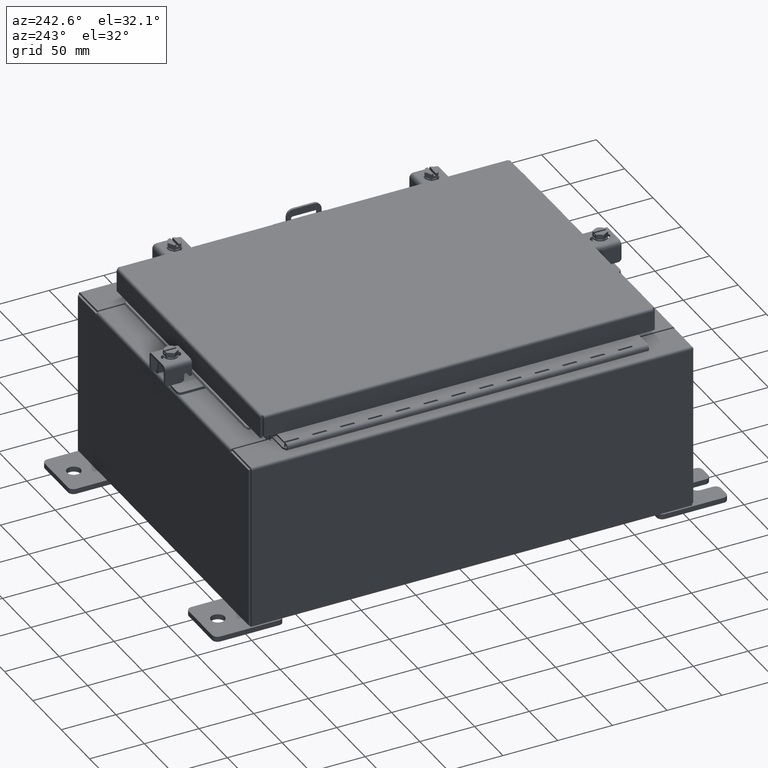
[diagram: clean part render]
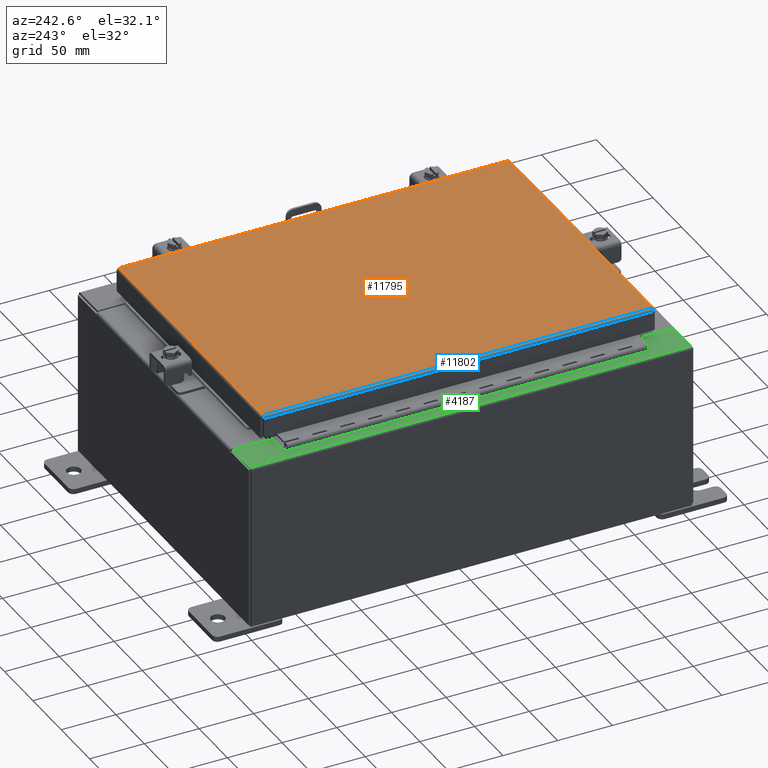
[diagram: same view with three faces highlighted in distinct colors, each labeled with its STEP entity id]
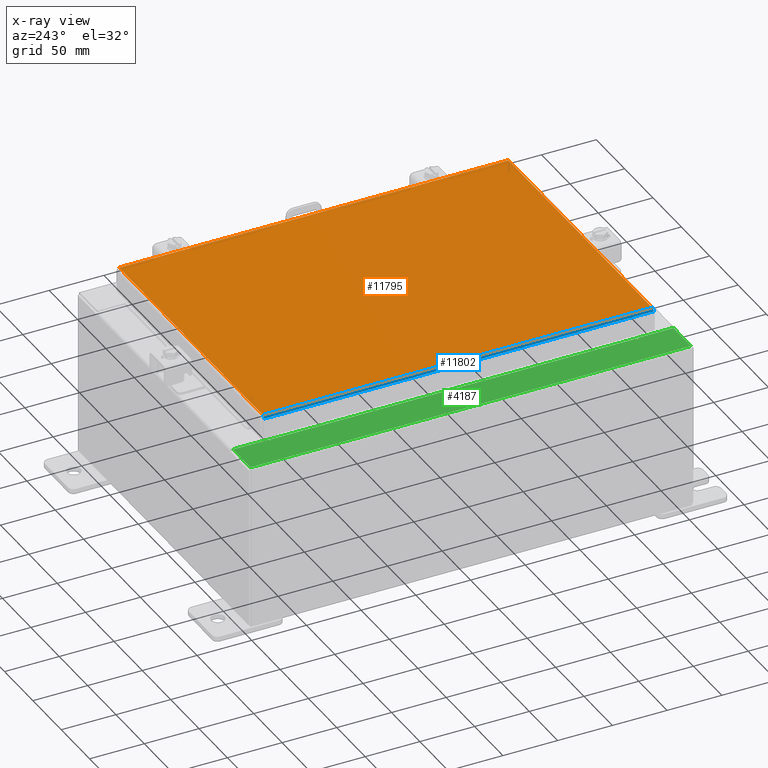
[diagram: x-ray of the same camera — body ghosted, the three highlighted faces saturated]
A machine part, auxiliary view with three faces highlighted in distinct colors.
The next image is the same camera in x-ray (body ghosted, the three faces saturated) — at least one of them is partly hidden behind the body in this view.
Their STEP definitions:

[orange] entity #11795 — the highlighted planar face has unit normal (0, 0, -1).
#437 = ORIENTED_EDGE ( 'NONE', *, *, #8925, .T. ) ;
#1994 = DIRECTION ( 'NONE',  ( 0.0000000000000000000, -1.000000000000000000, 0.0000000000000000000 ) ) ;
#4113 = CARTESIAN_POINT ( 'NONE',  ( 0.0000000000000000000, 0.0000000000000000000, 0.0000000000000000000 ) ) ;
#4370 = EDGE_CURVE ( 'NONE', #23203, #8193, #15462, .T. ) ;
#4674 = LINE ( 'NONE', #15477, #25450 ) ;
#5616 = AXIS2_PLACEMENT_3D ( 'NONE', #4113, #18199, #6128 ) ;
#6128 = DIRECTION ( 'NONE',  ( -1.000000000000000000, 0.0000000000000000000, -0.0000000000000000000 ) ) ;
#7520 = LINE ( 'NONE', #8040, #12886 ) ;
#7756 = VERTEX_POINT ( 'NONE', #13197 ) ;
#8040 = CARTESIAN_POINT ( 'NONE',  ( -4.990300000000000400, 7.006300000000000400, -2.048885995248197400E-016 ) ) ;
#8193 = VERTEX_POINT ( 'NONE', #16489 ) ;
#8215 = CARTESIAN_POINT ( 'NONE',  ( 4.990299999999998600, -7.006300000000000400, 3.414809992080329000E-016 ) ) ;
#8925 = EDGE_CURVE ( 'NONE', #7756, #24246, #4674, .T. ) ;
#9381 = EDGE_LOOP ( 'NONE', ( #437, #14432, #21642, #16861 ) ) ;
#11795 = ADVANCED_FACE ( 'NONE', ( #23741 ), #14143, .F. ) ;
#12689 = EDGE_CURVE ( 'NONE', #24246, #23203, #21191, .T. ) ;
#12793 = CARTESIAN_POINT ( 'NONE',  ( 4.990299999999998600, 7.006300000000000400, -2.048885995248197400E-016 ) ) ;
#12886 = VECTOR ( 'NONE', #1994, 39.37007874015748100 ) ;
#13197 = CARTESIAN_POINT ( 'NONE',  ( -4.990300000000000400, -7.006300000000000400, -2.048885995248197400E-016 ) ) ;
#14143 = PLANE ( 'NONE',  #5616 ) ;
#14432 = ORIENTED_EDGE ( 'NONE', *, *, #12689, .T. ) ;
#14978 = DIRECTION ( 'NONE',  ( 0.0000000000000000000, 1.000000000000000000, 0.0000000000000000000 ) ) ;
#15462 = LINE ( 'NONE', #12793, #25540 ) ;
#15477 = CARTESIAN_POINT ( 'NONE',  ( -4.990300000000000400, -7.006300000000000400, -2.048885995248197400E-016 ) ) ;
#15882 = EDGE_CURVE ( 'NONE', #8193, #7756, #7520, .T. ) ;
#16489 = CARTESIAN_POINT ( 'NONE',  ( -4.990300000000000400, 7.006300000000000400, -2.048885995248197400E-016 ) ) ;
#16861 = ORIENTED_EDGE ( 'NONE', *, *, #15882, .T. ) ;
#18199 = DIRECTION ( 'NONE',  ( 0.0000000000000000000, 0.0000000000000000000, -1.000000000000000000 ) ) ;
#18751 = CARTESIAN_POINT ( 'NONE',  ( 4.990299999999998600, 7.006300000000000400, -2.048885995248197400E-016 ) ) ;
#18872 = DIRECTION ( 'NONE',  ( -1.000000000000000000, -0.0000000000000000000, -0.0000000000000000000 ) ) ;
#21191 = LINE ( 'NONE', #25020, #25882 ) ;
#21570 = DIRECTION ( 'NONE',  ( 1.000000000000000000, -0.0000000000000000000, -0.0000000000000000000 ) ) ;
#21642 = ORIENTED_EDGE ( 'NONE', *, *, #4370, .T. ) ;
#23203 = VERTEX_POINT ( 'NONE', #18751 ) ;
#23741 = FACE_OUTER_BOUND ( 'NONE', #9381, .T. ) ;
#24246 = VERTEX_POINT ( 'NONE', #8215 ) ;
#25020 = CARTESIAN_POINT ( 'NONE',  ( 4.990299999999998600, -7.006300000000000400, 3.414809992080329000E-016 ) ) ;
#25450 = VECTOR ( 'NONE', #21570, 39.37007874015748100 ) ;
#25540 = VECTOR ( 'NONE', #18872, 39.37007874015748100 ) ;
#25882 = VECTOR ( 'NONE', #14978, 39.37007874015748100 ) ;

[blue] entity #11802 — the highlighted cylindrical surface (edge-blend (fillet) strip) has radius 2.2276 mm, axis along (0, 1, 0).
#431 = CARTESIAN_POINT ( 'NONE',  ( -5.060430782078324100, -7.005633754219490000, -0.03380425265820009900 ) ) ;
#1004 = EDGE_CURVE ( 'NONE', #5773, #23257, #12114, .T. ) ;
#1716 = CYLINDRICAL_SURFACE ( 'NONE', #8326, 0.08770000000000026400 ) ;
#1781 = CARTESIAN_POINT ( 'NONE',  ( -5.034467384578530200, 7.005919288125422600, -0.01106893374133176100 ) ) ;
#1994 = DIRECTION ( 'NONE',  ( 0.0000000000000000000, -1.000000000000000000, 0.0000000000000000000 ) ) ;
#2470 = CARTESIAN_POINT ( 'NONE',  ( -5.075717403743813500, -7.005348220313559100, -0.06474471054169118900 ) ) ;
#3793 = CARTESIAN_POINT ( 'NONE',  ( -5.001779903154994300, 7.006204822031357100, -2.037547758946368100E-016 ) ) ;
#3994 = EDGE_LOOP ( 'NONE', ( #18633, #18398, #21571, #8501 ) ) ;
#4302 = CARTESIAN_POINT ( 'NONE',  ( -5.078000000000001200, 7.005157864376269700, -0.08770000000000004200 ) ) ;
#4472 = CARTESIAN_POINT ( 'NONE',  ( -5.078000000000001200, -7.005157864376269700, -0.08770000000000007000 ) ) ;
#5773 = VERTEX_POINT ( 'NONE', #4302 ) ;
#5820 = DIRECTION ( 'NONE',  ( 3.797360338743712300E-031, -1.000000000000000000, -1.119390514946887900E-045 ) ) ;
#6397 = CARTESIAN_POINT ( 'NONE',  ( -4.990300000000000400, -7.006300000000000400, -2.048885995248197400E-016 ) ) ;
#6783 = VECTOR ( 'NONE', #5820, 39.37007874015748100 ) ;
#7379 = B_SPLINE_CURVE_WITH_KNOTS ( 'NONE', 3,
 ( #6397, #22514, #10457, #24529, #12481, #431, #14500, #2470, #16510, #4472 ),
 .UNSPECIFIED., .F., .F.,
 ( 4, 2, 2, 2, 4 ),
 ( 0.0000000000000000000, 0.2500000000000000000, 0.5000000000000000000, 0.7500000000000000000, 1.000000000000000000 ),
 .UNSPECIFIED. ) ;
#7520 = LINE ( 'NONE', #8040, #12886 ) ;
#7756 = VERTEX_POINT ( 'NONE', #13197 ) ;
#8040 = CARTESIAN_POINT ( 'NONE',  ( -4.990300000000000400, 7.006300000000000400, -2.048885995248197400E-016 ) ) ;
#8162 = CARTESIAN_POINT ( 'NONE',  ( -4.990300000000000400, 7.006300000000000400, -0.08770000000000030500 ) ) ;
#8193 = VERTEX_POINT ( 'NONE', #16489 ) ;
#8326 = AXIS2_PLACEMENT_3D ( 'NONE', #8162, #22260, #20229 ) ;
#8501 = ORIENTED_EDGE ( 'NONE', *, *, #13705, .F. ) ;
#10457 = CARTESIAN_POINT ( 'NONE',  ( -5.013255289458309800, -7.006109644062711100, -0.002282596256188924700 ) ) ;
#10928 = B_SPLINE_CURVE_WITH_KNOTS ( 'NONE', 3,
 ( #21836, #19798, #23856, #11784, #25866, #13813, #1781, #15832, #3793, #17859 ),
 .UNSPECIFIED., .F., .F.,
 ( 4, 2, 2, 2, 4 ),
 ( 0.0000000000000000000, 0.2500000000000000000, 0.5000000000000000000, 0.7500000000000000000, 1.000000000000000000 ),
 .UNSPECIFIED. ) ;
#11784 = CARTESIAN_POINT ( 'NONE',  ( -5.066931066258668200, 7.005538576250844900, -0.04353261542147222200 ) ) ;
#11802 = ADVANCED_FACE ( 'NONE', ( #17737 ), #1716, .T. ) ;
#11806 = CARTESIAN_POINT ( 'NONE',  ( -5.078000000000001200, -7.094000000000000300, -0.08770000000000004200 ) ) ;
#12114 = LINE ( 'NONE', #11806, #6783 ) ;
#12481 = CARTESIAN_POINT ( 'NONE',  ( -5.044195747341800200, -7.005824110156779300, -0.01756921792167976500 ) ) ;
#12886 = VECTOR ( 'NONE', #1994, 39.37007874015748100 ) ;
#13197 = CARTESIAN_POINT ( 'NONE',  ( -4.990300000000000400, -7.006300000000000400, -2.048885995248197400E-016 ) ) ;
#13705 = EDGE_CURVE ( 'NONE', #7756, #23257, #7379, .T. ) ;
#13813 = CARTESIAN_POINT ( 'NONE',  ( -5.044195747341799300, 7.005824110156780200, -0.01756921792167976500 ) ) ;
#14500 = CARTESIAN_POINT ( 'NONE',  ( -5.066931066258668200, -7.005538576250847500, -0.04353261542147222900 ) ) ;
#15832 = CARTESIAN_POINT ( 'NONE',  ( -5.013255289458311600, 7.006109644062711100, -0.002282596256188923800 ) ) ;
#15882 = EDGE_CURVE ( 'NONE', #8193, #7756, #7520, .T. ) ;
#16489 = CARTESIAN_POINT ( 'NONE',  ( -4.990300000000000400, 7.006300000000000400, -2.048885995248197400E-016 ) ) ;
#16510 = CARTESIAN_POINT ( 'NONE',  ( -5.078000000000001200, -7.005253042344914900, -0.07622009684500735700 ) ) ;
#17737 = FACE_OUTER_BOUND ( 'NONE', #3994, .T. ) ;
#17859 = CARTESIAN_POINT ( 'NONE',  ( -4.990300000000000400, 7.006300000000000400, -2.048885995248197400E-016 ) ) ;
#18398 = ORIENTED_EDGE ( 'NONE', *, *, #22011, .F. ) ;
#18633 = ORIENTED_EDGE ( 'NONE', *, *, #15882, .F. ) ;
#19798 = CARTESIAN_POINT ( 'NONE',  ( -5.078000000000001200, 7.005253042344914900, -0.07622009684500732900 ) ) ;
#20229 = DIRECTION ( 'NONE',  ( -1.000000000000000000, 0.0000000000000000000, 3.114992011019675100E-015 ) ) ;
#21048 = CARTESIAN_POINT ( 'NONE',  ( -5.078000000000001200, -7.005157864376269700, -0.08770000000000007000 ) ) ;
#21571 = ORIENTED_EDGE ( 'NONE', *, *, #1004, .T. ) ;
#21836 = CARTESIAN_POINT ( 'NONE',  ( -5.078000000000001200, 7.005157864376269700, -0.08770000000000004200 ) ) ;
#22011 = EDGE_CURVE ( 'NONE', #5773, #8193, #10928, .T. ) ;
#22260 = DIRECTION ( 'NONE',  ( -0.0000000000000000000, 1.000000000000000000, -0.0000000000000000000 ) ) ;
#22514 = CARTESIAN_POINT ( 'NONE',  ( -5.001779903154992500, -7.006204822031357100, -2.043883832173860400E-016 ) ) ;
#23257 = VERTEX_POINT ( 'NONE', #21048 ) ;
#23856 = CARTESIAN_POINT ( 'NONE',  ( -5.075717403743813500, 7.005348220313559100, -0.06474471054169118900 ) ) ;
#24529 = CARTESIAN_POINT ( 'NONE',  ( -5.034467384578528400, -7.005919288125420900, -0.01106893374133176100 ) ) ;
#25866 = CARTESIAN_POINT ( 'NONE',  ( -5.060430782078321400, 7.005633754219491700, -0.03380425265820009200 ) ) ;

[green] entity #4187 — the highlighted planar face has unit normal (0, 0, -1).
#133 = EDGE_CURVE ( 'NONE', #23858, #21659, #22267, .T. ) ;
#282 = CIRCLE ( 'NONE', #7056, 0.01867500000000003900 ) ;
#580 = CARTESIAN_POINT ( 'NONE',  ( -5.912300000000023200, 7.925299999999998200, 5.925299999999999100 ) ) ;
#1392 = DIRECTION ( 'NONE',  ( 1.000000000000000000, 0.0000000000000000000, 0.0000000000000000000 ) ) ;
#1544 = CARTESIAN_POINT ( 'NONE',  ( -4.699700000000022200, -2.266503483687116700E-030, 5.925300000000008000 ) ) ;
#1802 = AXIS2_PLACEMENT_3D ( 'NONE', #6175, #8303, #22386 ) ;
#2990 = LINE ( 'NONE', #16076, #18390 ) ;
#3809 = VECTOR ( 'NONE', #19627, 39.37007874015748100 ) ;
#4187 = ADVANCED_FACE ( 'NONE', ( #8837 ), #12252, .F. ) ;
#4317 = VERTEX_POINT ( 'NONE', #6612 ) ;
#4398 = VERTEX_POINT ( 'NONE', #4860 ) ;
#4544 = ORIENTED_EDGE ( 'NONE', *, *, #23726, .T. ) ;
#4610 = VERTEX_POINT ( 'NONE', #17588 ) ;
#4640 = EDGE_CURVE ( 'NONE', #4610, #6543, #19856, .T. ) ;
#4716 = ORIENTED_EDGE ( 'NONE', *, *, #23855, .F. ) ;
#4860 = CARTESIAN_POINT ( 'NONE',  ( -4.712700000000023000, -6.593749999999999100, 5.925300000000008000 ) ) ;
#6175 = CARTESIAN_POINT ( 'NONE',  ( -4.252457061908983700E-014, 0.0000000000000000000, 5.925300000000041800 ) ) ;
#6526 = EDGE_CURVE ( 'NONE', #4317, #13063, #17967, .T. ) ;
#6543 = VERTEX_POINT ( 'NONE', #580 ) ;
#6612 = CARTESIAN_POINT ( 'NONE',  ( -5.912300000000023200, -7.925300000000000000, 5.925299999999999100 ) ) ;
#7056 = AXIS2_PLACEMENT_3D ( 'NONE', #8669, #22751, #10688 ) ;
#7180 = ORIENTED_EDGE ( 'NONE', *, *, #11759, .F. ) ;
#7580 = CARTESIAN_POINT ( 'NONE',  ( -4.252457061908983700E-014, 7.925299999999998200, 5.925300000000041800 ) ) ;
#7656 = VECTOR ( 'NONE', #11735, 39.37007874015748100 ) ;
#8303 = DIRECTION ( 'NONE',  ( 7.132762385546378400E-015, 0.0000000000000000000, -1.000000000000000000 ) ) ;
#8307 = VECTOR ( 'NONE', #14123, 39.37007874015748100 ) ;
#8475 = VERTEX_POINT ( 'NONE', #21429 ) ;
#8669 = CARTESIAN_POINT ( 'NONE',  ( -4.750050000000023000, 6.612424999999998200, 5.925300000000008000 ) ) ;
#8837 = FACE_OUTER_BOUND ( 'NONE', #9706, .T. ) ;
#8945 = LINE ( 'NONE', #24151, #8307 ) ;
#8983 = CARTESIAN_POINT ( 'NONE',  ( -4.699700000000022200, 6.631100000000000000, 5.925300000000008000 ) ) ;
#9031 = VECTOR ( 'NONE', #22884, 39.37007874015748100 ) ;
#9706 = EDGE_LOOP ( 'NONE', ( #22235, #4544, #15894, #18713, #12018, #15342, #22604, #25847, #13991, #7180, #4716, #10888 ) ) ;
#10440 = CARTESIAN_POINT ( 'NONE',  ( -4.750050000000023000, -6.593749999999999100, 5.925300000000008000 ) ) ;
#10516 = CARTESIAN_POINT ( 'NONE',  ( -4.252457061908983700E-014, -7.925300000000000000, 5.925300000000041800 ) ) ;
#10688 = DIRECTION ( 'NONE',  ( 1.000000000000000000, 0.0000000000000000000, 0.0000000000000000000 ) ) ;
#10888 = ORIENTED_EDGE ( 'NONE', *, *, #15993, .F. ) ;
#11056 = CARTESIAN_POINT ( 'NONE',  ( -4.750050000000023000, -6.631099999999999100, 5.925300000000008000 ) ) ;
#11070 = AXIS2_PLACEMENT_3D ( 'NONE', #25477, #13431, #1392 ) ;
#11735 = DIRECTION ( 'NONE',  ( 6.893992640440775600E-017, 1.000000000000000000, 4.917321139196952400E-031 ) ) ;
#11759 = EDGE_CURVE ( 'NONE', #15616, #4398, #2990, .T. ) ;
#12018 = ORIENTED_EDGE ( 'NONE', *, *, #6526, .T. ) ;
#12252 = PLANE ( 'NONE',  #1802 ) ;
#12320 = EDGE_CURVE ( 'NONE', #4317, #6543, #24344, .T. ) ;
#12441 = VECTOR ( 'NONE', #19017, 39.37007874015748100 ) ;
#12635 = VECTOR ( 'NONE', #24685, 39.37007874015748100 ) ;
#12841 = CARTESIAN_POINT ( 'NONE',  ( -4.750050000000023000, -6.631099999999999100, 5.925300000000008000 ) ) ;
#13063 = VERTEX_POINT ( 'NONE', #24207 ) ;
#13179 = LINE ( 'NONE', #1544, #18531 ) ;
#13431 = DIRECTION ( 'NONE',  ( -7.132762385546378400E-015, -0.0000000000000000000, 1.000000000000000000 ) ) ;
#13582 = DIRECTION ( 'NONE',  ( -4.822655666717293700E-031, 1.000000000000000000, -3.439885693800320600E-045 ) ) ;
#13991 = ORIENTED_EDGE ( 'NONE', *, *, #19074, .F. ) ;
#14000 = EDGE_CURVE ( 'NONE', #23670, #23858, #25248, .T. ) ;
#14123 = DIRECTION ( 'NONE',  ( -1.000000000000000000, 0.0000000000000000000, 0.0000000000000000000 ) ) ;
#14660 = DIRECTION ( 'NONE',  ( -4.822655666717293700E-031, 1.000000000000000000, -3.439885693800320600E-045 ) ) ;
#14726 = CARTESIAN_POINT ( 'NONE',  ( -4.699700000000022200, 6.631100000000000000, 5.925300000000008000 ) ) ;
#15342 = ORIENTED_EDGE ( 'NONE', *, *, #21416, .T. ) ;
#15616 = VERTEX_POINT ( 'NONE', #23389 ) ;
#15894 = ORIENTED_EDGE ( 'NONE', *, *, #4640, .T. ) ;
#15993 = EDGE_CURVE ( 'NONE', #8475, #17886, #282, .T. ) ;
#16076 = CARTESIAN_POINT ( 'NONE',  ( -4.712700000000023000, 6.593749999999999100, 5.925300000000008000 ) ) ;
#16104 = CARTESIAN_POINT ( 'NONE',  ( -4.750050000000023000, 6.593749999999999100, 5.925300000000008000 ) ) ;
#17023 = CARTESIAN_POINT ( 'NONE',  ( -4.750050000000023000, 6.593749999999999100, 5.925300000000008000 ) ) ;
#17185 = LINE ( 'NONE', #17023, #25982 ) ;
#17493 = VERTEX_POINT ( 'NONE', #14726 ) ;
#17588 = CARTESIAN_POINT ( 'NONE',  ( -4.699700000000022200, 7.925299999999998200, 5.925300000000008000 ) ) ;
#17803 = VECTOR ( 'NONE', #14660, 39.37007874015748100 ) ;
#17886 = VERTEX_POINT ( 'NONE', #16104 ) ;
#17967 = LINE ( 'NONE', #10516, #12635 ) ;
#18106 = DIRECTION ( 'NONE',  ( -0.0000000000000000000, -1.000000000000000000, -0.0000000000000000000 ) ) ;
#18159 = EDGE_CURVE ( 'NONE', #17493, #8475, #18431, .T. ) ;
#18390 = VECTOR ( 'NONE', #18106, 39.37007874015748100 ) ;
#18431 = LINE ( 'NONE', #8983, #12441 ) ;
#18531 = VECTOR ( 'NONE', #13582, 39.37007874015748100 ) ;
#18627 = CARTESIAN_POINT ( 'NONE',  ( -4.699700000000022200, -2.266503483687116700E-030, 5.925300000000008000 ) ) ;
#18713 = ORIENTED_EDGE ( 'NONE', *, *, #12320, .F. ) ;
#19017 = DIRECTION ( 'NONE',  ( -1.000000000000000000, -2.170286390199978800E-014, 0.0000000000000000000 ) ) ;
#19074 = EDGE_CURVE ( 'NONE', #4398, #23670, #8945, .T. ) ;
#19627 = DIRECTION ( 'NONE',  ( -1.000000000000000000, -6.146651423996189400E-032, -7.132762385546378400E-015 ) ) ;
#19856 = LINE ( 'NONE', #7580, #3809 ) ;
#21416 = EDGE_CURVE ( 'NONE', #13063, #21659, #13179, .T. ) ;
#21429 = CARTESIAN_POINT ( 'NONE',  ( -4.750050000000023000, 6.631099999999998200, 5.925300000000008000 ) ) ;
#21659 = VERTEX_POINT ( 'NONE', #22748 ) ;
#22235 = ORIENTED_EDGE ( 'NONE', *, *, #18159, .F. ) ;
#22267 = LINE ( 'NONE', #12841, #9031 ) ;
#22386 = DIRECTION ( 'NONE',  ( -1.000000000000000000, 0.0000000000000000000, -7.132762385546378400E-015 ) ) ;
#22604 = ORIENTED_EDGE ( 'NONE', *, *, #133, .F. ) ;
#22748 = CARTESIAN_POINT ( 'NONE',  ( -4.699700000000022200, -6.631100000000000900, 5.925300000000008000 ) ) ;
#22751 = DIRECTION ( 'NONE',  ( -7.132762385546378400E-015, -0.0000000000000000000, 1.000000000000000000 ) ) ;
#22884 = DIRECTION ( 'NONE',  ( 1.000000000000000000, -2.170286390199978800E-014, 0.0000000000000000000 ) ) ;
#23131 = DIRECTION ( 'NONE',  ( 1.000000000000000000, 0.0000000000000000000, 0.0000000000000000000 ) ) ;
#23195 = LINE ( 'NONE', #18627, #17803 ) ;
#23389 = CARTESIAN_POINT ( 'NONE',  ( -4.712700000000023000, 6.593749999999999100, 5.925300000000008000 ) ) ;
#23670 = VERTEX_POINT ( 'NONE', #10440 ) ;
#23715 = CARTESIAN_POINT ( 'NONE',  ( -5.912300000000022300, 7.925299999999998200, 5.925299999999999100 ) ) ;
#23726 = EDGE_CURVE ( 'NONE', #17493, #4610, #23195, .T. ) ;
#23855 = EDGE_CURVE ( 'NONE', #17886, #15616, #17185, .T. ) ;
#23858 = VERTEX_POINT ( 'NONE', #11056 ) ;
#24151 = CARTESIAN_POINT ( 'NONE',  ( -4.712700000000023000, -6.593749999999999100, 5.925300000000008000 ) ) ;
#24207 = CARTESIAN_POINT ( 'NONE',  ( -4.699700000000022200, -7.925300000000000000, 5.925300000000008000 ) ) ;
#24344 = LINE ( 'NONE', #23715, #7656 ) ;
#24685 = DIRECTION ( 'NONE',  ( 1.000000000000000000, 8.758115402030108600E-047, 7.132762385546378400E-015 ) ) ;
#25248 = CIRCLE ( 'NONE', #11070, 0.01867500000000003900 ) ;
#25477 = CARTESIAN_POINT ( 'NONE',  ( -4.750050000000023000, -6.612424999999998200, 5.925300000000008000 ) ) ;
#25847 = ORIENTED_EDGE ( 'NONE', *, *, #14000, .F. ) ;
#25982 = VECTOR ( 'NONE', #23131, 39.37007874015748100 ) ;